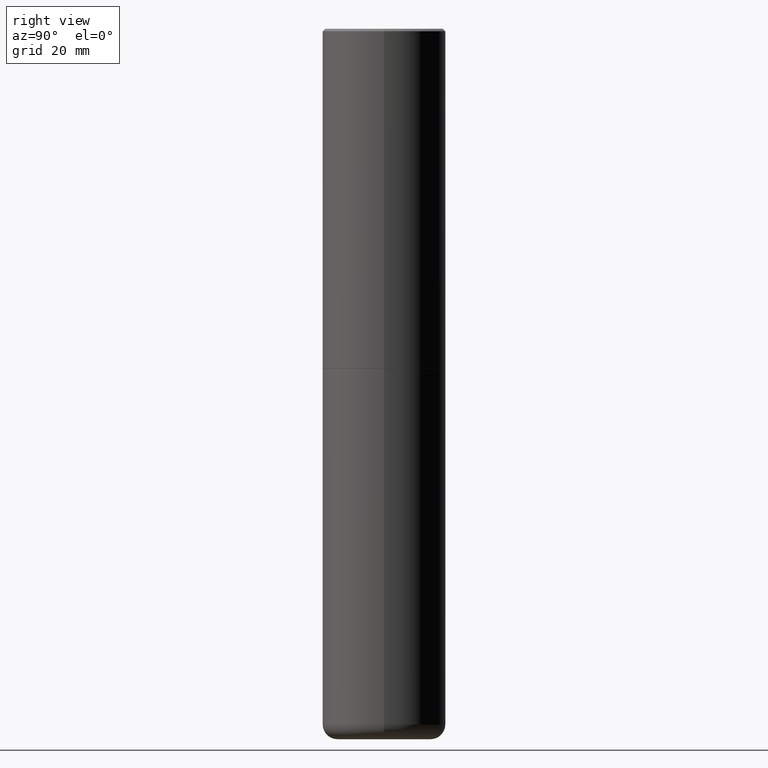
[diagram: clean part render]
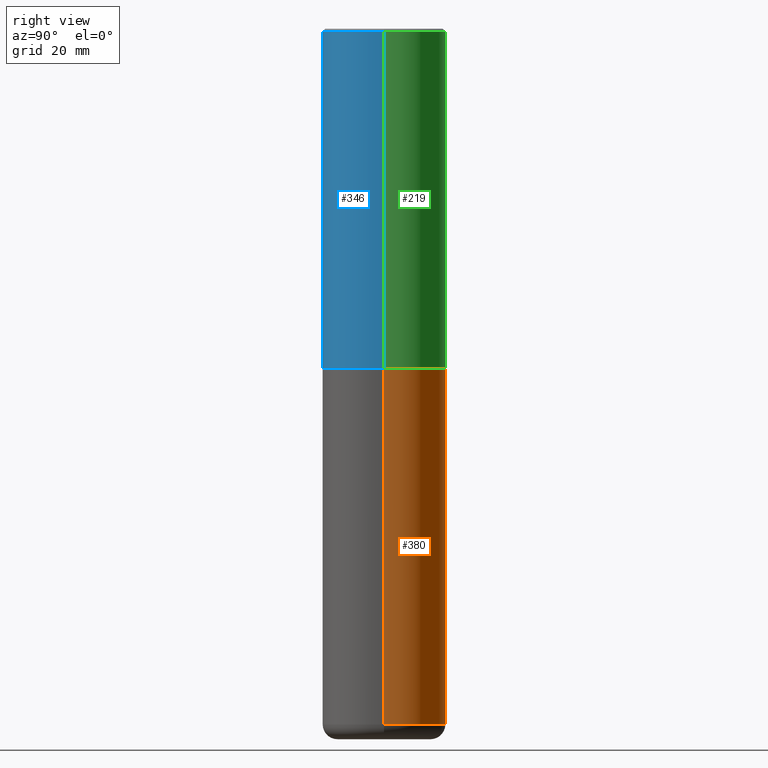
[diagram: same view with three faces highlighted in distinct colors, each labeled with its STEP entity id]
A machine part, right view with three faces highlighted in distinct colors.
Their STEP definitions:

[orange] entity #380 — the highlighted cylindrical surface (partial cylindrical patch) has radius 12.7 mm, axis along (-0, 0, 1).
#12 = CARTESIAN_POINT ( 'NONE',  ( 0.000000000000000000, 0.000000000000000000, 0.000000000000000000 ) ) ;
#13 = EDGE_LOOP ( 'NONE', ( #155, #271, #286, #25 ) ) ;
#22 = AXIS2_PLACEMENT_3D ( 'NONE', #392, #99, #119 ) ;
#24 = DIRECTION ( 'NONE',  ( 1.000000000000000000, -6.982962677686266711E-15, 4.876176775795935793E-29 ) ) ;
#25 = ORIENTED_EDGE ( 'NONE', *, *, #209, .F. ) ;
#26 = EDGE_CURVE ( 'NONE', #113, #124, #36, .T. ) ;
#36 = CIRCLE ( 'NONE', #198, 0.5000000000000000000 ) ;
#90 = CARTESIAN_POINT ( 'NONE',  ( -0.5000000000000000000, -1.107659313095227642E-14, -2.749999999999999556 ) ) ;
#99 = DIRECTION ( 'NONE',  ( -2.445468806185136597E-29, 3.491481338843145583E-15, 1.000000000000000000 ) ) ;
#106 = AXIS2_PLACEMENT_3D ( 'NONE', #12, #153, #24 ) ;
#113 = VERTEX_POINT ( 'NONE', #321 ) ;
#119 = DIRECTION ( 'NONE',  ( 1.000000000000000000, -6.982962677686263555E-15, 0.000000000000000000 ) ) ;
#122 = CARTESIAN_POINT ( 'NONE',  ( -0.4999999999999998335, -1.610432625888640549E-14, -5.629999999999999893 ) ) ;
#124 = VERTEX_POINT ( 'NONE', #90 ) ;
#129 = DIRECTION ( 'NONE',  ( -2.445468806185136597E-29, 3.491481338843145583E-15, 1.000000000000000000 ) ) ;
#149 = FACE_OUTER_BOUND ( 'NONE', #13, .T. ) ;
#153 = DIRECTION ( 'NONE',  ( -2.445468806185136597E-29, 3.491481338843145583E-15, 1.000000000000000000 ) ) ;
#155 = ORIENTED_EDGE ( 'NONE', *, *, #417, .T. ) ;
#160 = CARTESIAN_POINT ( 'NONE',  ( 6.725039217009123399E-29, -9.601573681818648281E-15, -2.749999999999999556 ) ) ;
#166 = CARTESIAN_POINT ( 'NONE',  ( 0.5000000000000000000, -3.491481338843133355E-15, 2.438088387897967896E-29 ) ) ;
#182 = CARTESIAN_POINT ( 'NONE',  ( -0.5000000000000000000, 3.552713678800500929E-15, -2.459467545127452891E-29 ) ) ;
#189 = CYLINDRICAL_SURFACE ( 'NONE', #106, 0.5000000000000000000 ) ;
#198 = AXIS2_PLACEMENT_3D ( 'NONE', #160, #129, #260 ) ;
#205 = CIRCLE ( 'NONE', #22, 0.4999999999999999445 ) ;
#209 = EDGE_CURVE ( 'NONE', #218, #113, #406, .T. ) ;
#218 = VERTEX_POINT ( 'NONE', #379 ) ;
#226 = VERTEX_POINT ( 'NONE', #122 ) ;
#260 = DIRECTION ( 'NONE',  ( 1.000000000000000000, -6.982962677686266711E-15, 0.000000000000000000 ) ) ;
#270 = EDGE_CURVE ( 'NONE', #226, #124, #361, .T. ) ;
#271 = ORIENTED_EDGE ( 'NONE', *, *, #270, .T. ) ;
#286 = ORIENTED_EDGE ( 'NONE', *, *, #26, .F. ) ;
#291 = DIRECTION ( 'NONE',  ( -2.445468806185136877E-29, 3.491481338843145188E-15, 1.000000000000000000 ) ) ;
#321 = CARTESIAN_POINT ( 'NONE',  ( 0.5000000000000000000, -1.309305502066178164E-14, -2.749999999999999556 ) ) ;
#341 = VECTOR ( 'NONE', #291, 39.37007874015748143 ) ;
#357 = DIRECTION ( 'NONE',  ( -2.445468806185136877E-29, 3.491481338843145188E-15, 1.000000000000000000 ) ) ;
#361 = LINE ( 'NONE', #182, #381 ) ;
#379 = CARTESIAN_POINT ( 'NONE',  ( 0.4999999999999998335, -2.314852127653003978E-14, -5.629999999999999893 ) ) ;
#380 = ADVANCED_FACE ( 'NONE', ( #149 ), #189, .T. ) ;
#381 = VECTOR ( 'NONE', #357, 39.37007874015748143 ) ;
#392 = CARTESIAN_POINT ( 'NONE',  ( 1.376798937882231913E-28, -1.965703993768690642E-14, -5.629999999999999893 ) ) ;
#406 = LINE ( 'NONE', #166, #341 ) ;
#417 = EDGE_CURVE ( 'NONE', #218, #226, #205, .T. ) ;

[blue] entity #346 — the highlighted cylindrical surface (partial cylindrical patch) has radius 12.7 mm, axis along (-0, 0, 1).
#4 = VECTOR ( 'NONE', #201, 39.37007874015748143 ) ;
#10 = CYLINDRICAL_SURFACE ( 'NONE', #343, 0.5000000000000001110 ) ;
#37 = CIRCLE ( 'NONE', #140, 0.5000000000000000000 ) ;
#60 = DIRECTION ( 'NONE',  ( 1.000000000000000000, -6.982962677686266711E-15, 0.000000000000000000 ) ) ;
#79 = FACE_OUTER_BOUND ( 'NONE', #268, .T. ) ;
#89 = DIRECTION ( 'NONE',  ( 1.000000000000000000, -6.982962677686267499E-15, 4.876176775795935793E-29 ) ) ;
#98 = LINE ( 'NONE', #405, #4 ) ;
#104 = EDGE_CURVE ( 'NONE', #109, #107, #98, .T. ) ;
#107 = VERTEX_POINT ( 'NONE', #228 ) ;
#109 = VERTEX_POINT ( 'NONE', #163 ) ;
#110 = CARTESIAN_POINT ( 'NONE',  ( 6.722593748202938917E-29, -9.598082200479805274E-15, -2.748999999999999666 ) ) ;
#112 = CIRCLE ( 'NONE', #383, 0.5000000000000003331 ) ;
#115 = DIRECTION ( 'NONE',  ( -2.445468806185136597E-29, 3.491481338843145583E-15, 1.000000000000000000 ) ) ;
#140 = AXIS2_PLACEMENT_3D ( 'NONE', #259, #302, #60 ) ;
#142 = ORIENTED_EDGE ( 'NONE', *, *, #294, .F. ) ;
#151 = CARTESIAN_POINT ( 'NONE',  ( 0.000000000000000000, 0.000000000000000000, 0.000000000000000000 ) ) ;
#156 = DIRECTION ( 'NONE',  ( -2.445468806185136877E-29, 3.491481338843145188E-15, 1.000000000000000000 ) ) ;
#163 = CARTESIAN_POINT ( 'NONE',  ( 0.5000000000000003331, -1.308956353932294179E-14, -2.748999999999999666 ) ) ;
#196 = CARTESIAN_POINT ( 'NONE',  ( -0.5000000000000000000, 3.421651712066270057E-15, -0.02000000000000010797 ) ) ;
#201 = DIRECTION ( 'NONE',  ( -2.445468806185136877E-29, 3.491481338843145188E-15, 1.000000000000000000 ) ) ;
#213 = CARTESIAN_POINT ( 'NONE',  ( -0.5000000000000001110, 3.552713678800501718E-15, -2.459467545127453732E-29 ) ) ;
#223 = LINE ( 'NONE', #213, #247 ) ;
#228 = CARTESIAN_POINT ( 'NONE',  ( 0.5000000000000000000, -3.500078625662629079E-15, -0.02000000000000010797 ) ) ;
#240 = ORIENTED_EDGE ( 'NONE', *, *, #325, .T. ) ;
#247 = VECTOR ( 'NONE', #156, 39.37007874015748143 ) ;
#253 = VERTEX_POINT ( 'NONE', #330 ) ;
#259 = CARTESIAN_POINT ( 'NONE',  ( 4.890937612370299433E-31, -6.982962677686328587E-17, -0.02000000000000010797 ) ) ;
#268 = EDGE_LOOP ( 'NONE', ( #142, #240, #398, #337 ) ) ;
#294 = EDGE_CURVE ( 'NONE', #253, #350, #223, .T. ) ;
#302 = DIRECTION ( 'NONE',  ( -2.445468806185136597E-29, 3.491481338843145583E-15, 1.000000000000000000 ) ) ;
#325 = EDGE_CURVE ( 'NONE', #253, #109, #112, .T. ) ;
#330 = CARTESIAN_POINT ( 'NONE',  ( -0.5000000000000003331, -1.281242234827828821E-15, -2.748999999999999666 ) ) ;
#337 = ORIENTED_EDGE ( 'NONE', *, *, #349, .F. ) ;
#343 = AXIS2_PLACEMENT_3D ( 'NONE', #151, #395, #89 ) ;
#346 = ADVANCED_FACE ( 'NONE', ( #79 ), #10, .T. ) ;
#349 = EDGE_CURVE ( 'NONE', #350, #107, #37, .T. ) ;
#350 = VERTEX_POINT ( 'NONE', #196 ) ;
#383 = AXIS2_PLACEMENT_3D ( 'NONE', #110, #115, #399 ) ;
#395 = DIRECTION ( 'NONE',  ( -2.445468806185136597E-29, 3.491481338843145583E-15, 1.000000000000000000 ) ) ;
#398 = ORIENTED_EDGE ( 'NONE', *, *, #104, .T. ) ;
#399 = DIRECTION ( 'NONE',  ( 1.000000000000000000, -6.982962677686265922E-15, 0.000000000000000000 ) ) ;
#405 = CARTESIAN_POINT ( 'NONE',  ( 0.5000000000000001110, -3.491481338843134539E-15, 2.438088387897968457E-29 ) ) ;

[green] entity #219 — the highlighted cylindrical surface (partial cylindrical patch) has radius 12.7 mm, axis along (-0, 0, 1).
#4 = VECTOR ( 'NONE', #201, 39.37007874015748143 ) ;
#8 = ORIENTED_EDGE ( 'NONE', *, *, #94, .F. ) ;
#56 = DIRECTION ( 'NONE',  ( 1.000000000000000000, -6.982962677686266711E-15, 0.000000000000000000 ) ) ;
#66 = CARTESIAN_POINT ( 'NONE',  ( 0.000000000000000000, 0.000000000000000000, 0.000000000000000000 ) ) ;
#87 = DIRECTION ( 'NONE',  ( -2.445468806185136597E-29, 3.491481338843145583E-15, 1.000000000000000000 ) ) ;
#88 = ORIENTED_EDGE ( 'NONE', *, *, #418, .T. ) ;
#94 = EDGE_CURVE ( 'NONE', #107, #350, #300, .T. ) ;
#98 = LINE ( 'NONE', #405, #4 ) ;
#102 = DIRECTION ( 'NONE',  ( 1.000000000000000000, -6.982962677686267499E-15, 4.876176775795935793E-29 ) ) ;
#104 = EDGE_CURVE ( 'NONE', #109, #107, #98, .T. ) ;
#107 = VERTEX_POINT ( 'NONE', #228 ) ;
#109 = VERTEX_POINT ( 'NONE', #163 ) ;
#133 = AXIS2_PLACEMENT_3D ( 'NONE', #66, #378, #102 ) ;
#152 = CYLINDRICAL_SURFACE ( 'NONE', #133, 0.5000000000000001110 ) ;
#156 = DIRECTION ( 'NONE',  ( -2.445468806185136877E-29, 3.491481338843145188E-15, 1.000000000000000000 ) ) ;
#163 = CARTESIAN_POINT ( 'NONE',  ( 0.5000000000000003331, -1.308956353932294179E-14, -2.748999999999999666 ) ) ;
#183 = EDGE_LOOP ( 'NONE', ( #88, #324, #8, #296 ) ) ;
#196 = CARTESIAN_POINT ( 'NONE',  ( -0.5000000000000000000, 3.421651712066270057E-15, -0.02000000000000010797 ) ) ;
#201 = DIRECTION ( 'NONE',  ( -2.445468806185136877E-29, 3.491481338843145188E-15, 1.000000000000000000 ) ) ;
#211 = CIRCLE ( 'NONE', #326, 0.5000000000000003331 ) ;
#213 = CARTESIAN_POINT ( 'NONE',  ( -0.5000000000000001110, 3.552713678800501718E-15, -2.459467545127453732E-29 ) ) ;
#219 = ADVANCED_FACE ( 'NONE', ( #263 ), #152, .T. ) ;
#223 = LINE ( 'NONE', #213, #247 ) ;
#228 = CARTESIAN_POINT ( 'NONE',  ( 0.5000000000000000000, -3.500078625662629079E-15, -0.02000000000000010797 ) ) ;
#230 = AXIS2_PLACEMENT_3D ( 'NONE', #262, #370, #56 ) ;
#247 = VECTOR ( 'NONE', #156, 39.37007874015748143 ) ;
#253 = VERTEX_POINT ( 'NONE', #330 ) ;
#262 = CARTESIAN_POINT ( 'NONE',  ( 4.890937612370299433E-31, -6.982962677686328587E-17, -0.02000000000000010797 ) ) ;
#263 = FACE_OUTER_BOUND ( 'NONE', #183, .T. ) ;
#294 = EDGE_CURVE ( 'NONE', #253, #350, #223, .T. ) ;
#296 = ORIENTED_EDGE ( 'NONE', *, *, #104, .F. ) ;
#300 = CIRCLE ( 'NONE', #230, 0.5000000000000000000 ) ;
#324 = ORIENTED_EDGE ( 'NONE', *, *, #294, .T. ) ;
#326 = AXIS2_PLACEMENT_3D ( 'NONE', #362, #87, #387 ) ;
#330 = CARTESIAN_POINT ( 'NONE',  ( -0.5000000000000003331, -1.281242234827828821E-15, -2.748999999999999666 ) ) ;
#350 = VERTEX_POINT ( 'NONE', #196 ) ;
#362 = CARTESIAN_POINT ( 'NONE',  ( 6.722593748202938917E-29, -9.598082200479805274E-15, -2.748999999999999666 ) ) ;
#370 = DIRECTION ( 'NONE',  ( -2.445468806185136597E-29, 3.491481338843145583E-15, 1.000000000000000000 ) ) ;
#378 = DIRECTION ( 'NONE',  ( -2.445468806185136597E-29, 3.491481338843145583E-15, 1.000000000000000000 ) ) ;
#387 = DIRECTION ( 'NONE',  ( 1.000000000000000000, -6.982962677686265922E-15, 0.000000000000000000 ) ) ;
#405 = CARTESIAN_POINT ( 'NONE',  ( 0.5000000000000001110, -3.491481338843134539E-15, 2.438088387897968457E-29 ) ) ;
#418 = EDGE_CURVE ( 'NONE', #109, #253, #211, .T. ) ;